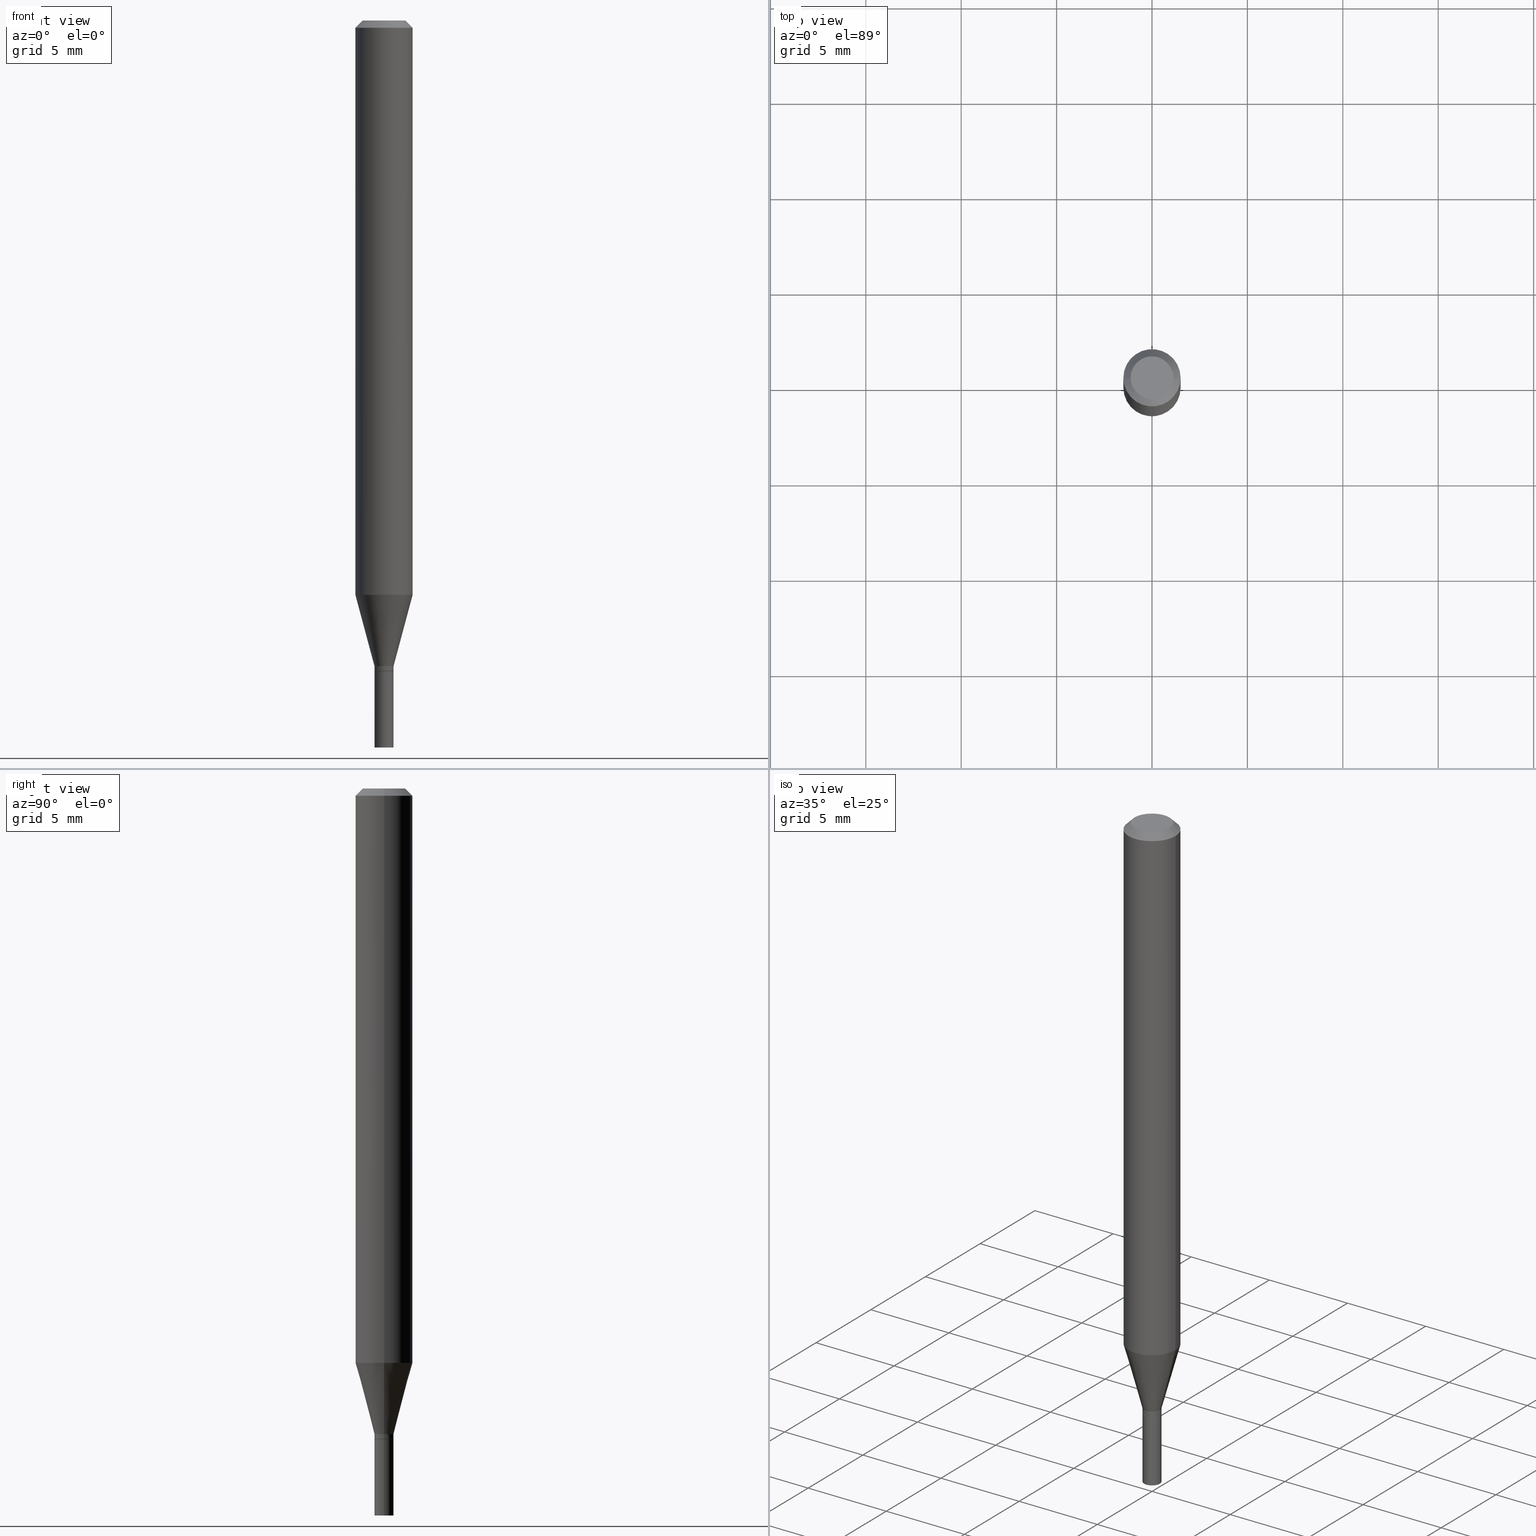
[diagram: canonical four-view strip — front | top / right | iso, engineering-drawing reading convention]
A machine part, canonical four-view strip (front | top / right | iso — engineering-drawing reading convention). The complete STEP part file that produces these views, byte-faithful:
ISO-10303-21;
HEADER;
FILE_DESCRIPTION (( 'STEP AP203' ),
    '1' );
FILE_NAME ('48650.STEP',
    '2024-03-12T19:37:40',
    ( '' ),
    ( '' ),
    'SwSTEP 2.0',
    'SolidWorks 2023',
    '' );
FILE_SCHEMA (( 'CONFIG_CONTROL_DESIGN' ));
ENDSEC;

DATA;
#1 = DIRECTION ( 'NONE',  ( -2.445468806185136597E-29, 3.491481338843145583E-15, 1.000000000000000000 ) ) ;
#2 = ORIENTED_EDGE ( 'NONE', *, *, #168, .T. ) ;
#3 = CC_DESIGN_PERSON_AND_ORGANIZATION_ASSIGNMENT ( #365, #269, ( #24 ) ) ;
#4 = ORIENTED_EDGE ( 'NONE', *, *, #100, .F. ) ;
#5 = CARTESIAN_POINT ( 'NONE',  ( 2.898232195509746702E-29, -4.137907464067076414E-15, -1.185143800722164409 ) ) ;
#6 = VECTOR ( 'NONE', #305, 39.37007874015748143 ) ;
#7 = CALENDAR_DATE ( 2024, 12, 3 ) ;
#8 = LINE ( 'NONE', #148, #243 ) ;
#9 = SECURITY_CLASSIFICATION_LEVEL ( 'unclassified' ) ;
#10 = ADVANCED_FACE ( 'NONE', ( #417 ), #272, .T. ) ;
#11 = SHAPE_DEFINITION_REPRESENTATION ( #428, #51 ) ;
#12 = CYLINDRICAL_SURFACE ( 'NONE', #371, 0.01969999999999990856 ) ;
#13 = AXIS2_PLACEMENT_3D ( 'NONE', #147, #413, #154 ) ;
#14 =( LENGTH_UNIT ( ) NAMED_UNIT ( * ) SI_UNIT ( $, .METRE. ) );
#15 = FACE_OUTER_BOUND ( 'NONE', #122, .T. ) ;
#16 = PERSON_AND_ORGANIZATION ( #335, #458 ) ;
#17 = CARTESIAN_POINT ( 'NONE',  ( 3.281819137900453618E-29, -4.685567956727501750E-15, -1.342000000000000304 ) ) ;
#18 = DIRECTION ( 'NONE',  ( -2.445468806185136597E-29, 3.491481338843145583E-15, 1.000000000000000000 ) ) ;
#19 = ORIENTED_EDGE ( 'NONE', *, *, #464, .F. ) ;
#20 = VECTOR ( 'NONE', #362, 39.37007874015748143 ) ;
#21 = ADVANCED_FACE ( 'NONE', ( #276 ), #182, .T. ) ;
#22 = CARTESIAN_POINT ( 'NONE',  ( 3.668203209277704895E-29, -5.237222008264718177E-15, -1.500000000000000222 ) ) ;
#23 = ORIENTED_EDGE ( 'NONE', *, *, #45, .F. ) ;
#24 = PRODUCT ( '48650', '48650', '', ( #429 ) ) ;
#25 = ORIENTED_EDGE ( 'NONE', *, *, #282, .T. ) ;
#26 = AXIS2_PLACEMENT_3D ( 'NONE', #61, #1, #33 ) ;
#27 = CC_DESIGN_SECURITY_CLASSIFICATION ( #311, ( #48 ) ) ;
#28 = DIRECTION ( 'NONE',  ( 1.000000000000000000, -6.982962677686253300E-15, 0.000000000000000000 ) ) ;
#29 = COORDINATED_UNIVERSAL_TIME_OFFSET ( 5, 0, .BEHIND. ) ;
#30 = ORIENTED_EDGE ( 'NONE', *, *, #290, .T. ) ;
#31 = CARTESIAN_POINT ( 'NONE',  ( 0.05905000000000001914, -4.123439461173741806E-16, 2.879382386107500921E-30 ) ) ;
#32 = EDGE_CURVE ( 'NONE', #200, #359, #73, .T. ) ;
#33 = DIRECTION ( 'NONE',  ( 1.000000000000000000, -6.982962677686266711E-15, 4.876176775795935793E-29 ) ) ;
#34 = FACE_OUTER_BOUND ( 'NONE', #164, .T. ) ;
#35 = EDGE_LOOP ( 'NONE', ( #424, #353, #322, #350 ) ) ;
#36 = CARTESIAN_POINT ( 'NONE',  ( -0.01969999999999989468, -4.114504101497534251E-15, -1.331999999999999851 ) ) ;
#37 = ORIENTED_EDGE ( 'NONE', *, *, #155, .F. ) ;
#38 = FACE_OUTER_BOUND ( 'NONE', #369, .T. ) ;
#39 = APPROVAL ( #223, 'UNSPECIFIED' ) ;
#40 = CARTESIAN_POINT ( 'NONE',  ( 0.01919999999999999485, -4.821386580808499461E-15, -1.342500000000000249 ) ) ;
#41 = CIRCLE ( 'NONE', #309, 0.01919999999999999485 ) ;
#42 = VECTOR ( 'NONE', #465, 39.37007874015748143 ) ;
#43 = CIRCLE ( 'NONE', #410, 0.01969999999999999876 ) ;
#44 = COORDINATED_UNIVERSAL_TIME_OFFSET ( 5, 0, .BEHIND. ) ;
#45 = EDGE_CURVE ( 'NONE', #438, #159, #231, .T. ) ;
#46 = EDGE_CURVE ( 'NONE', #103, #229, #41, .T. ) ;
#47 = ORIENTED_EDGE ( 'NONE', *, *, #347, .F. ) ;
#48 = PRODUCT_DEFINITION_FORMATION_WITH_SPECIFIED_SOURCE ( 'ANY', '', #24, .NOT_KNOWN. ) ;
#49 = CARTESIAN_POINT ( 'NONE',  ( 3.283041872303546419E-29, -4.687313697396923253E-15, -1.342500000000000249 ) ) ;
#50 = APPROVAL ( #416, 'UNSPECIFIED' ) ;
#51 = ADVANCED_BREP_SHAPE_REPRESENTATION ( '48650', ( #104, #111, #121 ), #343 ) ;
#52 = ORIENTED_EDGE ( 'NONE', *, *, #327, .F. ) ;
#53 = CIRCLE ( 'NONE', #325, 0.05905000000000001914 ) ;
#54 = CARTESIAN_POINT ( 'NONE',  ( -0.05905000000000001914, 3.599717260347269535E-16, -0.01499999999999999944 ) ) ;
#55 = EDGE_CURVE ( 'NONE', #141, #159, #213, .T. ) ;
#56 = DIRECTION ( 'NONE',  ( -2.445468806185136597E-29, 3.491481338843145583E-15, 1.000000000000000000 ) ) ;
#57 = CARTESIAN_POINT ( 'NONE',  ( -0.01919999999999999485, -4.548240264956872853E-15, -1.342500000000000249 ) ) ;
#58 = CONICAL_SURFACE ( 'NONE', #194, 0.05905000000000001914, 0.7853981633974372878 ) ;
#59 = DIRECTION ( 'NONE',  ( 0.000000000000000000, 0.000000000000000000, 1.000000000000000000 ) ) ;
#60 = CARTESIAN_POINT ( 'NONE',  ( -0.05905000000000001914, -3.718331978600737710E-15, -1.185143800722164409 ) ) ;
#61 = CARTESIAN_POINT ( 'NONE',  ( 0.000000000000000000, 0.000000000000000000, 0.000000000000000000 ) ) ;
#62 = DIRECTION ( 'NONE',  ( 1.000000000000000000, -6.982962677686265922E-15, 4.876176775795935793E-29 ) ) ;
#63 = ORIENTED_EDGE ( 'NONE', *, *, #442, .F. ) ;
#64 = DIRECTION ( 'NONE',  ( -2.438088387897960049E-29, 3.491481338843145188E-15, 1.000000000000000000 ) ) ;
#65 = CARTESIAN_POINT ( 'NONE',  ( 3.283041872303546419E-29, -4.687313697396923253E-15, -1.342500000000000249 ) ) ;
#66 = AXIS2_PLACEMENT_3D ( 'NONE', #172, #163, #401 ) ;
#67 = CARTESIAN_POINT ( 'NONE',  ( 3.283041872303546419E-29, -4.687313697396923253E-15, -1.342500000000000249 ) ) ;
#68 = EDGE_CURVE ( 'NONE', #103, #421, #391, .T. ) ;
#69 = LINE ( 'NONE', #295, #6 ) ;
#70 = EDGE_CURVE ( 'NONE', #229, #103, #341, .T. ) ;
#71 = CARTESIAN_POINT ( 'NONE',  ( -0.01969999999999991896, -4.545591037782763230E-15, -1.342000000000000304 ) ) ;
#72 = DATE_AND_TIME ( #7, #441 ) ;
#73 = CIRCLE ( 'NONE', #395, 0.01969999999999999876 ) ;
#74 = DIRECTION ( 'NONE',  ( -2.445468806185136597E-29, 3.491481338843145583E-15, 1.000000000000000000 ) ) ;
#75 = PERSON_AND_ORGANIZATION ( #335, #458 ) ;
#76 = VECTOR ( 'NONE', #378, 39.37007874015748143 ) ;
#77 = DIRECTION ( 'NONE',  ( -1.000000000000000000, 6.982962677686265922E-15, -4.876176775795935793E-29 ) ) ;
#78 = VERTEX_POINT ( 'NONE', #60 ) ;
#79 = CLOSED_SHELL ( 'NONE', ( #336, #191, #228, #230, #368, #21, #97, #81, #238, #176, #250, #170 ) ) ;
#80 = VECTOR ( 'NONE', #92, 39.37007874015748143 ) ;
#81 = ADVANCED_FACE ( 'NONE', ( #352 ), #175, .T. ) ;
#82 = CARTESIAN_POINT ( 'NONE',  ( -8.641182519006289553E-45, 1.233731848647591164E-30, 3.533548453838711334E-16 ) ) ;
#83 = DIRECTION ( 'NONE',  ( -2.445468806185136597E-29, 3.491481338843145583E-15, 1.000000000000000000 ) ) ;
#84 = VERTEX_POINT ( 'NONE', #463 ) ;
#85 = DIRECTION ( 'NONE',  ( -2.445468806185136597E-29, 3.491481338843145583E-15, 1.000000000000000000 ) ) ;
#86 = CC_DESIGN_APPROVAL ( #39, ( #311 ) ) ;
#87 = ORIENTED_EDGE ( 'NONE', *, *, #244, .T. ) ;
#88 = ADVANCED_FACE ( 'NONE', ( #136 ), #358, .T. ) ;
#89 = CARTESIAN_POINT ( 'NONE',  ( 3.668203209277705088E-31, -5.237222008264718399E-17, -0.01499999999999999944 ) ) ;
#90 = DIRECTION ( 'NONE',  ( 1.000000000000000000, 0.000000000000000000, 0.000000000000000000 ) ) ;
#91 = ORIENTED_EDGE ( 'NONE', *, *, #258, .F. ) ;
#92 = DIRECTION ( 'NONE',  ( -0.7071067811865396902, 2.468850131082174625E-15, -0.7071067811865553443 ) ) ;
#93 = APPROVAL_ROLE ( '' ) ;
#94 = ORIENTED_EDGE ( 'NONE', *, *, #55, .F. ) ;
#95 = VECTOR ( 'NONE', #297, 39.37007874015748854 ) ;
#96 = DIRECTION ( 'NONE',  ( 1.000000000000000000, -6.982962677686266711E-15, 0.000000000000000000 ) ) ;
#97 = ADVANCED_FACE ( 'NONE', ( #393 ), #433, .T. ) ;
#98 = ORIENTED_EDGE ( 'NONE', *, *, #277, .T. ) ;
#99 = PLANE ( 'NONE',  #251 ) ;
#100 = EDGE_CURVE ( 'NONE', #359, #200, #224, .T. ) ;
#101 = ORIENTED_EDGE ( 'NONE', *, *, #373, .T. ) ;
#102 = CONICAL_SURFACE ( 'NONE', #165, 0.01969999999999989468, 0.2617993877991499074 ) ;
#103 = VERTEX_POINT ( 'NONE', #57 ) ;
#104 = MANIFOLD_SOLID_BREP ( 'Body-Move/Copy2[1]', #292 ) ;
#105 = ORIENTED_EDGE ( 'NONE', *, *, #299, .T. ) ;
#106 = PERSON_AND_ORGANIZATION ( #335, #458 ) ;
#107 = LINE ( 'NONE', #40, #450 ) ;
#108 = CARTESIAN_POINT ( 'NONE',  ( -0.01969999999999999876, -4.822290933886080617E-15, -1.500000000000000222 ) ) ;
#109 = CARTESIAN_POINT ( 'NONE',  ( 0.05905000000000001914, -4.574846268510562433E-16, -0.01499999999999999944 ) ) ;
#110 = PRODUCT_RELATED_PRODUCT_CATEGORY ( 'detail', '', ( #24 ) ) ;
#111 = MANIFOLD_SOLID_BREP ( 'Body-Move/Copy2[2]', #79 ) ;
#112 = EDGE_LOOP ( 'NONE', ( #316, #179, #196, #169 ) ) ;
#113 = APPROVAL_DATE_TIME ( #72, #39 ) ;
#114 = APPROVAL_STATUS ( 'not_yet_approved' ) ;
#115 = DATE_TIME_ROLE ( 'creation_date' ) ;
#116 = DIRECTION ( 'NONE',  ( 1.000000000000000000, -6.982962677686266711E-15, 4.876176775795935793E-29 ) ) ;
#117 = ORIENTED_EDGE ( 'NONE', *, *, #210, .T. ) ;
#118 = AXIS2_PLACEMENT_3D ( 'NONE', #385, #420, #124 ) ;
#119 = CIRCLE ( 'NONE', #288, 0.01969999999999991896 ) ;
#120 = CARTESIAN_POINT ( 'NONE',  ( 2.898232195509746702E-29, -4.137907464067076414E-15, -1.185143800722164409 ) ) ;
#121 = AXIS2_PLACEMENT_3D ( 'NONE', #399, #59, #90 ) ;
#122 = EDGE_LOOP ( 'NONE', ( #405, #30, #101, #313 ) ) ;
#123 = DIRECTION ( 'NONE',  ( -2.445468806185136597E-29, 3.491481338843145583E-15, 1.000000000000000000 ) ) ;
#124 = DIRECTION ( 'NONE',  ( 1.000000000000000000, -6.982962677686265922E-15, 4.876176775795935232E-29 ) ) ;
#125 = CARTESIAN_POINT ( 'NONE',  ( 0.000000000000000000, 0.000000000000000000, 0.000000000000000000 ) ) ;
#126 = EDGE_CURVE ( 'NONE', #421, #208, #422, .T. ) ;
#127 = EDGE_LOOP ( 'NONE', ( #180, #4 ) ) ;
#128 = ORIENTED_EDGE ( 'NONE', *, *, #68, .F. ) ;
#129 = CIRCLE ( 'NONE', #445, 0.04404999999999999888 ) ;
#130 = APPROVAL_DATE_TIME ( #314, #160 ) ;
#131 = ORIENTED_EDGE ( 'NONE', *, *, #442, .T. ) ;
#132 = DIRECTION ( 'NONE',  ( -2.445468806185136877E-29, 3.491481338843145188E-15, 1.000000000000000000 ) ) ;
#133 = DIRECTION ( 'NONE',  ( 1.000000000000000000, -6.982962677686266711E-15, 0.000000000000000000 ) ) ;
#134 = EDGE_LOOP ( 'NONE', ( #105, #415, #52, #466 ) ) ;
#135 = EDGE_CURVE ( 'NONE', #460, #141, #389, .T. ) ;
#136 = FACE_OUTER_BOUND ( 'NONE', #283, .T. ) ;
#137 = DIRECTION ( 'NONE',  ( 2.438088387897960049E-29, -3.491481338843145188E-15, -1.000000000000000000 ) ) ;
#138 = CYLINDRICAL_SURFACE ( 'NONE', #26, 0.01969999999999990856 ) ;
#139 = CARTESIAN_POINT ( 'NONE',  ( 3.668203209277705088E-31, -5.237222008264718399E-17, -0.01499999999999999944 ) ) ;
#140 = AXIS2_PLACEMENT_3D ( 'NONE', #199, #275, #286 ) ;
#141 = VERTEX_POINT ( 'NONE', #240 ) ;
#142 = PLANE ( 'NONE',  #351 ) ;
#143 = AXIS2_PLACEMENT_3D ( 'NONE', #273, #74, #261 ) ;
#144 = APPLICATION_CONTEXT ( 'configuration controlled 3d designs of mechanical parts and assemblies' ) ;
#145 = ORIENTED_EDGE ( 'NONE', *, *, #46, .T. ) ;
#146 = CALENDAR_DATE ( 2024, 12, 3 ) ;
#147 = CARTESIAN_POINT ( 'NONE',  ( 3.257364449838602072E-29, -4.650653143339069312E-15, -1.331999999999999851 ) ) ;
#148 = CARTESIAN_POINT ( 'NONE',  ( -0.05905000000000001914, 4.195754854663392958E-16, -2.904631170795522943E-30 ) ) ;
#149 = CARTESIAN_POINT ( 'NONE',  ( 3.281819137900453618E-29, -4.685567956727501750E-15, -1.342000000000000304 ) ) ;
#150 = PERSON_AND_ORGANIZATION_ROLE ( 'creator' ) ;
#151 = CONICAL_SURFACE ( 'NONE', #435, 0.01919999999999999485, 0.7853981633974739252 ) ;
#152 = APPLICATION_CONTEXT ( 'configuration controlled 3d designs of mechanical parts and assemblies' ) ;
#153 = CARTESIAN_POINT ( 'NONE',  ( 0.000000000000000000, 0.000000000000000000, 0.000000000000000000 ) ) ;
#154 = DIRECTION ( 'NONE',  ( 1.000000000000000000, -6.982962677686266711E-15, 0.000000000000000000 ) ) ;
#155 = EDGE_CURVE ( 'NONE', #208, #348, #360, .T. ) ;
#156 = CYLINDRICAL_SURFACE ( 'NONE', #457, 0.05905000000000001914 ) ;
#157 = ORIENTED_EDGE ( 'NONE', *, *, #46, .F. ) ;
#158 = AXIS2_PLACEMENT_3D ( 'NONE', #89, #201, #234 ) ;
#159 = VERTEX_POINT ( 'NONE', #454 ) ;
#160 = APPROVAL ( #114, 'UNSPECIFIED' ) ;
#161 = CARTESIAN_POINT ( 'NONE',  ( -0.01919999999999999485, -4.550889492130984054E-15, -1.342500000000000249 ) ) ;
#162 = ORIENTED_EDGE ( 'NONE', *, *, #100, .T. ) ;
#163 = DIRECTION ( 'NONE',  ( -2.445468806185136597E-29, 3.491481338843145583E-15, 1.000000000000000000 ) ) ;
#164 = EDGE_LOOP ( 'NONE', ( #306, #204 ) ) ;
#165 = AXIS2_PLACEMENT_3D ( 'NONE', #355, #174, #96 ) ;
#166 = APPROVAL_PERSON_ORGANIZATION ( #106, #39, #187 ) ;
#167 = CARTESIAN_POINT ( 'NONE',  ( 3.257364449838602072E-29, -4.650653143339069312E-15, -1.331999999999999851 ) ) ;
#168 = EDGE_CURVE ( 'NONE', #241, #460, #129, .T. ) ;
#169 = ORIENTED_EDGE ( 'NONE', *, *, #430, .F. ) ;
#170 = ADVANCED_FACE ( 'NONE', ( #38 ), #138, .T. ) ;
#171 = CC_DESIGN_DATE_AND_TIME_ASSIGNMENT ( #408, #115, ( #248 ) ) ;
#172 = CARTESIAN_POINT ( 'NONE',  ( 3.668203209277705088E-31, -5.237222008264718399E-17, -0.01499999999999999944 ) ) ;
#173 = FACE_OUTER_BOUND ( 'NONE', #308, .T. ) ;
#174 = DIRECTION ( 'NONE',  ( -2.445468806185136597E-29, 3.491481338843145583E-15, 1.000000000000000000 ) ) ;
#175 = CONICAL_SURFACE ( 'NONE', #158, 0.05905000000000001914, 0.7853981633974372878 ) ;
#176 = ADVANCED_FACE ( 'NONE', ( #173 ), #142, .F. ) ;
#177 = LINE ( 'NONE', #329, #300 ) ;
#178 = CARTESIAN_POINT ( 'NONE',  ( 0.05905000000000001914, -4.550251410184451334E-15, -1.185143800722164409 ) ) ;
#179 = ORIENTED_EDGE ( 'NONE', *, *, #68, .T. ) ;
#180 = ORIENTED_EDGE ( 'NONE', *, *, #32, .F. ) ;
#181 = DIRECTION ( 'NONE',  ( -2.445468806185136597E-29, 3.491481338843145583E-15, 1.000000000000000000 ) ) ;
#182 = CONICAL_SURFACE ( 'NONE', #449, 0.01969999999999989468, 0.2617993877991499074 ) ;
#183 = AXIS2_PLACEMENT_3D ( 'NONE', #384, #64, #443 ) ;
#184 = APPROVAL_PERSON_ORGANIZATION ( #75, #50, #190 ) ;
#185 = FACE_OUTER_BOUND ( 'NONE', #112, .T. ) ;
#186 = CARTESIAN_POINT ( 'NONE',  ( 3.668203209277705088E-31, -5.237222008264718399E-17, -0.01499999999999999944 ) ) ;
#187 = APPROVAL_ROLE ( '' ) ;
#188 = CARTESIAN_POINT ( 'NONE',  ( 0.01969999999999989468, -4.788217508089488526E-15, -1.331999999999999851 ) ) ;
#189 = CARTESIAN_POINT ( 'NONE',  ( 3.075995059520799729E-16, 0.04404999999999999888, 2.287766971589501637E-17 ) ) ;
#190 = APPROVAL_ROLE ( '' ) ;
#191 = ADVANCED_FACE ( 'NONE', ( #185 ), #233, .T. ) ;
#192 = FACE_OUTER_BOUND ( 'NONE', #134, .T. ) ;
#193 = DIRECTION ( 'NONE',  ( 1.000000000000000000, -6.982962677686278543E-15, 0.000000000000000000 ) ) ;
#194 = AXIS2_PLACEMENT_3D ( 'NONE', #186, #266, #382 ) ;
#195 = DATE_AND_TIME ( #339, #226 ) ;
#196 = ORIENTED_EDGE ( 'NONE', *, *, #299, .F. ) ;
#197 = PLANE ( 'NONE',  #183 ) ;
#198 = DIRECTION ( 'NONE',  ( 1.000000000000000000, -6.982962677686278543E-15, 0.000000000000000000 ) ) ;
#199 = CARTESIAN_POINT ( 'NONE',  ( 0.000000000000000000, 0.000000000000000000, 0.000000000000000000 ) ) ;
#200 = VERTEX_POINT ( 'NONE', #296 ) ;
#201 = DIRECTION ( 'NONE',  ( 2.445468806185136597E-29, -3.491481338843145583E-15, -1.000000000000000000 ) ) ;
#202 = PERSON_AND_ORGANIZATION_ROLE ( 'creator' ) ;
#203 = VECTOR ( 'NONE', #455, 39.37007874015748143 ) ;
#204 = ORIENTED_EDGE ( 'NONE', *, *, #464, .T. ) ;
#205 = DIRECTION ( 'NONE',  ( -2.445468806185136597E-29, 3.491481338843145583E-15, 1.000000000000000000 ) ) ;
#206 = CARTESIAN_POINT ( 'NONE',  ( 3.668203209277704895E-29, -5.237222008264718177E-15, -1.500000000000000222 ) ) ;
#207 = ORIENTED_EDGE ( 'NONE', *, *, #70, .F. ) ;
#208 = VERTEX_POINT ( 'NONE', #36 ) ;
#209 = AXIS2_PLACEMENT_3D ( 'NONE', #17, #220, #262 ) ;
#210 = EDGE_CURVE ( 'NONE', #208, #78, #177, .T. ) ;
#211 = CARTESIAN_POINT ( 'NONE',  ( 0.01969999999999999876, -4.824878062147343257E-15, -1.342500000000000249 ) ) ;
#212 = ORIENTED_EDGE ( 'NONE', *, *, #45, .T. ) ;
#213 = CIRCLE ( 'NONE', #66, 0.05905000000000001914 ) ;
#214 = CARTESIAN_POINT ( 'NONE',  ( 3.283041872303546419E-29, -4.687313697396923253E-15, -1.342500000000000249 ) ) ;
#215 = DATE_AND_TIME ( #303, #245 ) ;
#216 = ORIENTED_EDGE ( 'NONE', *, *, #126, .F. ) ;
#217 = DIRECTION ( 'NONE',  ( -2.445468806185136597E-29, 3.491481338843145583E-15, 1.000000000000000000 ) ) ;
#218 = APPROVAL_DATE_TIME ( #195, #50 ) ;
#219 = UNCERTAINTY_MEASURE_WITH_UNIT (LENGTH_MEASURE( 1.000000000000000082E-05 ), #376, 'distance_accuracy_value', 'NONE');
#220 = DIRECTION ( 'NONE',  ( -2.445468806185136597E-29, 3.491481338843145583E-15, 1.000000000000000000 ) ) ;
#221 = LINE ( 'NONE', #411, #95 ) ;
#222 = DIRECTION ( 'NONE',  ( -0.2588190451025211836, 5.211531920934547886E-15, 0.9659258262890679791 ) ) ;
#223 = APPROVAL_STATUS ( 'not_yet_approved' ) ;
#224 = CIRCLE ( 'NONE', #270, 0.01969999999999999876 ) ;
#225 = COORDINATED_UNIVERSAL_TIME_OFFSET ( 5, 0, .BEHIND. ) ;
#226 = LOCAL_TIME ( 15, 37, 40.00000000000000000, #225 ) ;
#227 = DIRECTION ( 'NONE',  ( 1.000000000000000000, -6.982962677686265922E-15, 4.819687581474398999E-29 ) ) ;
#228 = ADVANCED_FACE ( 'NONE', ( #15 ), #58, .T. ) ;
#229 = VERTEX_POINT ( 'NONE', #307 ) ;
#230 = ADVANCED_FACE ( 'NONE', ( #451 ), #156, .T. ) ;
#231 = LINE ( 'NONE', #31, #242 ) ;
#232 = EDGE_LOOP ( 'NONE', ( #436, #117, #263, #47 ) ) ;
#233 = CONICAL_SURFACE ( 'NONE', #404, 0.01919999999999999485, 0.7853981633974739252 ) ;
#234 = DIRECTION ( 'NONE',  ( -1.000000000000000000, 6.982962677686266711E-15, 0.000000000000000000 ) ) ;
#235 = EDGE_LOOP ( 'NONE', ( #330, #274, #212, #94 ) ) ;
#236 = EDGE_CURVE ( 'NONE', #400, #402, #293, .T. ) ;
#237 = CARTESIAN_POINT ( 'NONE',  ( -8.641182519006289553E-45, 1.233731848647591164E-30, 3.533548453838711334E-16 ) ) ;
#238 = ADVANCED_FACE ( 'NONE', ( #271 ), #419, .F. ) ;
#239 = EDGE_LOOP ( 'NONE', ( #98, #346, #426, #23 ) ) ;
#240 = CARTESIAN_POINT ( 'NONE',  ( -0.05905000000000001914, -1.675564356608522648E-15, -0.01499999999999999944 ) ) ;
#241 = VERTEX_POINT ( 'NONE', #387 ) ;
#242 = VECTOR ( 'NONE', #132, 39.37007874015748143 ) ;
#243 = VECTOR ( 'NONE', #301, 39.37007874015748143 ) ;
#244 = EDGE_CURVE ( 'NONE', #460, #241, #456, .T. ) ;
#245 = LOCAL_TIME ( 15, 37, 40.00000000000000000, #267 ) ;
#246 = DIRECTION ( 'NONE',  ( 1.000000000000000000, -6.982962677686266711E-15, 0.000000000000000000 ) ) ;
#247 = ORIENTED_EDGE ( 'NONE', *, *, #282, .F. ) ;
#248 = PRODUCT_DEFINITION ( 'UNKNOWN', '', #48, #324 ) ;
#249 = CARTESIAN_POINT ( 'NONE',  ( 1.375643647504522233E-16, 0.01969999999999531154, -1.342500000000000249 ) ) ;
#250 = ADVANCED_FACE ( 'NONE', ( #379 ), #151, .T. ) ;
#251 = AXIS2_PLACEMENT_3D ( 'NONE', #249, #137, #287 ) ;
#252 = LOCAL_TIME ( 15, 37, 40.00000000000000000, #268 ) ;
#253 = ORIENTED_EDGE ( 'NONE', *, *, #430, .T. ) ;
#254 = DIRECTION ( 'NONE',  ( -2.445468806185136597E-29, 3.491481338843145583E-15, 1.000000000000000000 ) ) ;
#255 = DIRECTION ( 'NONE',  ( -2.438088387897960049E-29, 3.491481338843145188E-15, 1.000000000000000000 ) ) ;
#256 = CC_DESIGN_PERSON_AND_ORGANIZATION_ASSIGNMENT ( #16, #448, ( #311 ) ) ;
#257 = ORIENTED_EDGE ( 'NONE', *, *, #347, .T. ) ;
#258 = EDGE_CURVE ( 'NONE', #421, #84, #119, .T. ) ;
#259 = AXIS2_PLACEMENT_3D ( 'NONE', #423, #123, #28 ) ;
#260 = DIRECTION ( 'NONE',  ( -2.445468806185136597E-29, 3.491481338843145583E-15, 1.000000000000000000 ) ) ;
#261 = DIRECTION ( 'NONE',  ( 1.000000000000000000, -6.982962677686278543E-15, 0.000000000000000000 ) ) ;
#262 = DIRECTION ( 'NONE',  ( 1.000000000000000000, -6.982962677686258033E-15, 0.000000000000000000 ) ) ;
#263 = ORIENTED_EDGE ( 'NONE', *, *, #277, .F. ) ;
#264 = DIRECTION ( 'NONE',  ( 1.000000000000000000, -6.982962677686258033E-15, 0.000000000000000000 ) ) ;
#265 = PERSON_AND_ORGANIZATION_ROLE ( 'design_supplier' ) ;
#266 = DIRECTION ( 'NONE',  ( 2.445468806185136597E-29, -3.491481338843145583E-15, -1.000000000000000000 ) ) ;
#267 = COORDINATED_UNIVERSAL_TIME_OFFSET ( 5, 0, .BEHIND. ) ;
#268 = COORDINATED_UNIVERSAL_TIME_OFFSET ( 5, 0, .BEHIND. ) ;
#269 = PERSON_AND_ORGANIZATION_ROLE ( 'design_owner' ) ;
#270 = AXIS2_PLACEMENT_3D ( 'NONE', #22, #312, #431 ) ;
#271 = FACE_OUTER_BOUND ( 'NONE', #328, .T. ) ;
#272 = CYLINDRICAL_SURFACE ( 'NONE', #118, 0.01969999999999999876 ) ;
#273 = CARTESIAN_POINT ( 'NONE',  ( 3.283041872303546419E-29, -4.687313697396923253E-15, -1.342500000000000249 ) ) ;
#274 = ORIENTED_EDGE ( 'NONE', *, *, #289, .T. ) ;
#275 = DIRECTION ( 'NONE',  ( -2.445468806185136597E-29, 3.491481338843145583E-15, 1.000000000000000000 ) ) ;
#276 = FACE_OUTER_BOUND ( 'NONE', #434, .T. ) ;
#277 = EDGE_CURVE ( 'NONE', #438, #78, #380, .T. ) ;
#278 = AXIS2_PLACEMENT_3D ( 'NONE', #189, #412, #77 ) ;
#279 = ORIENTED_EDGE ( 'NONE', *, *, #32, .T. ) ;
#280 = PERSON_AND_ORGANIZATION ( #335, #458 ) ;
#281 = CARTESIAN_POINT ( 'NONE',  ( -0.01969999999999990856, 1.399769189447390869E-16, -9.690302127802118711E-31 ) ) ;
#282 = EDGE_CURVE ( 'NONE', #359, #402, #69, .T. ) ;
#283 = EDGE_LOOP ( 'NONE', ( #279, #25, #363, #63 ) ) ;
#284 = CARTESIAN_POINT ( 'NONE',  ( 3.283041872303546419E-29, -4.687313697396923253E-15, -1.342500000000000249 ) ) ;
#285 = ORIENTED_EDGE ( 'NONE', *, *, #289, .F. ) ;
#286 = DIRECTION ( 'NONE',  ( 1.000000000000000000, -6.982962677686265922E-15, 4.876176775795935232E-29 ) ) ;
#287 = DIRECTION ( 'NONE',  ( -1.000000000000000000, 6.982962677686265922E-15, -4.876176775795935793E-29 ) ) ;
#288 = AXIS2_PLACEMENT_3D ( 'NONE', #149, #302, #264 ) ;
#289 = EDGE_CURVE ( 'NONE', #78, #438, #53, .T. ) ;
#290 = EDGE_CURVE ( 'NONE', #241, #159, #414, .T. ) ;
#291 = ORIENTED_EDGE ( 'NONE', *, *, #258, .T. ) ;
#292 = CLOSED_SHELL ( 'NONE', ( #88, #398, #10, #452 ) ) ;
#293 = CIRCLE ( 'NONE', #143, 0.01969999999999999876 ) ;
#294 = CC_DESIGN_PERSON_AND_ORGANIZATION_ASSIGNMENT ( #345, #150, ( #48 ) ) ;
#295 = CARTESIAN_POINT ( 'NONE',  ( -0.01969999999999999876, 1.399769189447397278E-16, -9.690302127802162501E-31 ) ) ;
#296 = CARTESIAN_POINT ( 'NONE',  ( 0.01969999999999999876, -5.374786373015138180E-15, -1.500000000000000222 ) ) ;
#297 = DIRECTION ( 'NONE',  ( 0.2588190451025211836, 1.565188264969622559E-15, 0.9659258262890679791 ) ) ;
#298 = LINE ( 'NONE', #444, #76 ) ;
#299 = EDGE_CURVE ( 'NONE', #84, #421, #390, .T. ) ;
#300 = VECTOR ( 'NONE', #222, 39.37007874015748854 ) ;
#301 = DIRECTION ( 'NONE',  ( -2.445468806185136877E-29, 3.491481338843145188E-15, 1.000000000000000000 ) ) ;
#302 = DIRECTION ( 'NONE',  ( -2.445468806185136597E-29, 3.491481338843145583E-15, 1.000000000000000000 ) ) ;
#303 = CALENDAR_DATE ( 2024, 12, 3 ) ;
#304 = ORIENTED_EDGE ( 'NONE', *, *, #210, .F. ) ;
#305 = DIRECTION ( 'NONE',  ( -2.445468806185136877E-29, 3.491481338843145188E-15, 1.000000000000000000 ) ) ;
#306 = ORIENTED_EDGE ( 'NONE', *, *, #236, .T. ) ;
#307 = CARTESIAN_POINT ( 'NONE',  ( 0.01919999999999999485, -4.821386580808499461E-15, -1.342500000000000249 ) ) ;
#308 = EDGE_LOOP ( 'NONE', ( #207, #157 ) ) ;
#309 = AXIS2_PLACEMENT_3D ( 'NONE', #284, #85, #427 ) ;
#310 = CIRCLE ( 'NONE', #13, 0.01969999999999989468 ) ;
#311 = SECURITY_CLASSIFICATION ( '', '', #9 ) ;
#312 = DIRECTION ( 'NONE',  ( -2.445468806185136597E-29, 3.491481338843145583E-15, 1.000000000000000000 ) ) ;
#313 = ORIENTED_EDGE ( 'NONE', *, *, #135, .F. ) ;
#314 = DATE_AND_TIME ( #386, #252 ) ;
#315 = DIRECTION ( 'NONE',  ( 1.000000000000000000, -6.982962677686266711E-15, 4.876176775795935793E-29 ) ) ;
#316 = ORIENTED_EDGE ( 'NONE', *, *, #70, .T. ) ;
#317 = CIRCLE ( 'NONE', #440, 0.05905000000000001914 ) ;
#318 = DIMENSIONAL_EXPONENTS ( 1.000000000000000000, 0.000000000000000000, 0.000000000000000000, 0.000000000000000000, 0.000000000000000000, 0.000000000000000000, 0.000000000000000000 ) ;
#319 = DIRECTION ( 'NONE',  ( 1.000000000000000000, -6.982962677686266711E-15, 0.000000000000000000 ) ) ;
#320 =( NAMED_UNIT ( * ) PLANE_ANGLE_UNIT ( ) SI_UNIT ( $, .RADIAN. ) );
#321 = APPLICATION_PROTOCOL_DEFINITION ( 'international standard', 'config_control_design', 1994, #144 ) ;
#322 = ORIENTED_EDGE ( 'NONE', *, *, #135, .T. ) ;
#323 = CC_DESIGN_DATE_AND_TIME_ASSIGNMENT ( #215, #446, ( #311 ) ) ;
#324 = DESIGN_CONTEXT ( 'detailed design', #152, 'design' ) ;
#325 = AXIS2_PLACEMENT_3D ( 'NONE', #120, #83, #388 ) ;
#326 = CARTESIAN_POINT ( 'NONE',  ( -0.01969999999999999876, -4.822290933886080617E-15, -1.342500000000000249 ) ) ;
#327 = EDGE_CURVE ( 'NONE', #348, #208, #310, .T. ) ;
#328 = EDGE_LOOP ( 'NONE', ( #87, #2 ) ) ;
#329 = CARTESIAN_POINT ( 'NONE',  ( -0.01969999999999989468, -4.510676224394330003E-15, -1.331999999999999851 ) ) ;
#330 = ORIENTED_EDGE ( 'NONE', *, *, #437, .F. ) ;
#331 = DIRECTION ( 'NONE',  ( 0.7071067811865656694, -2.468850131082446387E-15, 0.7071067811865294761 ) ) ;
#332 = EDGE_CURVE ( 'NONE', #84, #348, #298, .T. ) ;
#333 = ORIENTED_EDGE ( 'NONE', *, *, #332, .T. ) ;
#334 = DIRECTION ( 'NONE',  ( 1.000000000000000000, -6.982962677686253300E-15, 0.000000000000000000 ) ) ;
#335 = PERSON ( 'UNSPECIFIED', 'UNSPECIFIED', 'UNSPECIFIED', ('UNSPECIFIED'), ('UNSPECIFIED'), ('UNSPECIFIED') ) ;
#336 = ADVANCED_FACE ( 'NONE', ( #192 ), #12, .T. ) ;
#337 = FACE_OUTER_BOUND ( 'NONE', #232, .T. ) ;
#338 = DIRECTION ( 'NONE',  ( 1.000000000000000000, -6.982962677686253300E-15, 0.000000000000000000 ) ) ;
#339 = CALENDAR_DATE ( 2024, 12, 3 ) ;
#340 = PERSON_AND_ORGANIZATION ( #335, #458 ) ;
#341 = CIRCLE ( 'NONE', #259, 0.01919999999999999485 ) ;
#342 = EDGE_LOOP ( 'NONE', ( #128, #145, #253, #91 ) ) ;
#343 =( GEOMETRIC_REPRESENTATION_CONTEXT ( 3 ) GLOBAL_UNCERTAINTY_ASSIGNED_CONTEXT ( ( #219 ) ) GLOBAL_UNIT_ASSIGNED_CONTEXT ( ( #376, #320, #394 ) ) REPRESENTATION_CONTEXT ( 'NONE', 'WORKASPACE' ) );
#344 = DIRECTION ( 'NONE',  ( 1.000000000000000000, -6.982962677686266711E-15, 4.876176775795935793E-29 ) ) ;
#345 = PERSON_AND_ORGANIZATION ( #335, #458 ) ;
#346 = ORIENTED_EDGE ( 'NONE', *, *, #437, .T. ) ;
#347 = EDGE_CURVE ( 'NONE', #348, #438, #221, .T. ) ;
#348 = VERTEX_POINT ( 'NONE', #188 ) ;
#349 = CC_DESIGN_PERSON_AND_ORGANIZATION_ASSIGNMENT ( #383, #265, ( #48 ) ) ;
#350 = ORIENTED_EDGE ( 'NONE', *, *, #55, .T. ) ;
#351 = AXIS2_PLACEMENT_3D ( 'NONE', #67, #255, #62 ) ;
#352 = FACE_OUTER_BOUND ( 'NONE', #35, .T. ) ;
#353 = ORIENTED_EDGE ( 'NONE', *, *, #244, .F. ) ;
#354 = DIRECTION ( 'NONE',  ( -2.445468806185136597E-29, 3.491481338843145583E-15, 1.000000000000000000 ) ) ;
#355 = CARTESIAN_POINT ( 'NONE',  ( 3.257364449838602072E-29, -4.650653143339069312E-15, -1.331999999999999851 ) ) ;
#356 = LINE ( 'NONE', #461, #42 ) ;
#357 = CC_DESIGN_PERSON_AND_ORGANIZATION_ASSIGNMENT ( #280, #202, ( #248 ) ) ;
#358 = CYLINDRICAL_SURFACE ( 'NONE', #140, 0.01969999999999999876 ) ;
#359 = VERTEX_POINT ( 'NONE', #108 ) ;
#360 = CIRCLE ( 'NONE', #366, 0.01969999999999989468 ) ;
#361 = APPROVAL_PERSON_ORGANIZATION ( #340, #160, #93 ) ;
#362 = DIRECTION ( 'NONE',  ( -0.7071067811865656694, 7.493145998870420424E-15, 0.7071067811865294761 ) ) ;
#363 = ORIENTED_EDGE ( 'NONE', *, *, #236, .F. ) ;
#364 = CARTESIAN_POINT ( 'NONE',  ( 3.257364449838602072E-29, -4.650653143339069312E-15, -1.331999999999999851 ) ) ;
#365 = PERSON_AND_ORGANIZATION ( #335, #458 ) ;
#366 = AXIS2_PLACEMENT_3D ( 'NONE', #167, #56, #319 ) ;
#367 = CC_DESIGN_APPROVAL ( #50, ( #48 ) ) ;
#368 = ADVANCED_FACE ( 'NONE', ( #337 ), #102, .T. ) ;
#369 = EDGE_LOOP ( 'NONE', ( #216, #291, #333, #37 ) ) ;
#370 = DIRECTION ( 'NONE',  ( 1.000000000000000000, -6.982962677686265922E-15, 4.819687581474398999E-29 ) ) ;
#371 = AXIS2_PLACEMENT_3D ( 'NONE', #153, #260, #344 ) ;
#372 = LENGTH_MEASURE_WITH_UNIT ( LENGTH_MEASURE( 0.02539999999999999897 ), #14 );
#373 = EDGE_CURVE ( 'NONE', #159, #141, #317, .T. ) ;
#374 = DIRECTION ( 'NONE',  ( 0.7071067811865396902, -7.319954787623229224E-15, -0.7071067811865553443 ) ) ;
#375 = APPLICATION_PROTOCOL_DEFINITION ( 'international standard', 'config_control_design', 1994, #152 ) ;
#376 =( CONVERSION_BASED_UNIT ( 'INCH', #372 ) LENGTH_UNIT ( ) NAMED_UNIT ( #318 ) );
#377 = DIRECTION ( 'NONE',  ( -2.445468806185136597E-29, 3.491481338843145583E-15, 1.000000000000000000 ) ) ;
#378 = DIRECTION ( 'NONE',  ( -2.445468806185136877E-29, 3.491481338843145188E-15, 1.000000000000000000 ) ) ;
#379 = FACE_OUTER_BOUND ( 'NONE', #342, .T. ) ;
#380 = CIRCLE ( 'NONE', #425, 0.05905000000000001914 ) ;
#381 = CC_DESIGN_APPROVAL ( #160, ( #248 ) ) ;
#382 = DIRECTION ( 'NONE',  ( -1.000000000000000000, 6.982962677686266711E-15, 0.000000000000000000 ) ) ;
#383 = PERSON_AND_ORGANIZATION ( #335, #458 ) ;
#384 = CARTESIAN_POINT ( 'NONE',  ( 3.576687321579069994E-29, -5.368277968210015545E-15, -1.500000000000000222 ) ) ;
#385 = CARTESIAN_POINT ( 'NONE',  ( 0.000000000000000000, 0.000000000000000000, 0.000000000000000000 ) ) ;
#386 = CALENDAR_DATE ( 2024, 12, 3 ) ;
#387 = CARTESIAN_POINT ( 'NONE',  ( 0.04404999999999999888, -3.798447818264455642E-16, 3.533548453838735986E-16 ) ) ;
#388 = DIRECTION ( 'NONE',  ( 1.000000000000000000, -6.982962677686270655E-15, 0.000000000000000000 ) ) ;
#389 = LINE ( 'NONE', #54, #80 ) ;
#390 = CIRCLE ( 'NONE', #209, 0.01969999999999991896 ) ;
#391 = LINE ( 'NONE', #161, #20 ) ;
#392 = DIRECTION ( 'NONE',  ( -2.445468806185136597E-29, 3.491481338843145583E-15, 1.000000000000000000 ) ) ;
#393 = FACE_OUTER_BOUND ( 'NONE', #235, .T. ) ;
#394 =( NAMED_UNIT ( * ) SI_UNIT ( $, .STERADIAN. ) SOLID_ANGLE_UNIT ( ) );
#395 = AXIS2_PLACEMENT_3D ( 'NONE', #206, #453, #198 ) ;
#396 = VECTOR ( 'NONE', #374, 39.37007874015748143 ) ;
#397 = LOCAL_TIME ( 15, 37, 40.00000000000000000, #29 ) ;
#398 = ADVANCED_FACE ( 'NONE', ( #439 ), #197, .F. ) ;
#399 = CARTESIAN_POINT ( 'NONE',  ( 0.000000000000000000, 0.000000000000000000, 0.000000000000000000 ) ) ;
#400 = VERTEX_POINT ( 'NONE', #211 ) ;
#401 = DIRECTION ( 'NONE',  ( 1.000000000000000000, -6.982962677686266711E-15, 0.000000000000000000 ) ) ;
#402 = VERTEX_POINT ( 'NONE', #326 ) ;
#403 = CARTESIAN_POINT ( 'NONE',  ( -0.04404999999999999888, 3.337856159934041534E-16, 3.533548453838689148E-16 ) ) ;
#404 = AXIS2_PLACEMENT_3D ( 'NONE', #214, #181, #334 ) ;
#405 = ORIENTED_EDGE ( 'NONE', *, *, #168, .F. ) ;
#406 = DIRECTION ( 'NONE',  ( 1.000000000000000000, -6.982962677686270655E-15, 0.000000000000000000 ) ) ;
#407 = ORIENTED_EDGE ( 'NONE', *, *, #155, .T. ) ;
#408 = DATE_AND_TIME ( #146, #397 ) ;
#409 = AXIS2_PLACEMENT_3D ( 'NONE', #125, #354, #315 ) ;
#410 = AXIS2_PLACEMENT_3D ( 'NONE', #65, #462, #193 ) ;
#411 = CARTESIAN_POINT ( 'NONE',  ( 0.01969999999999989468, -4.788217508089488526E-15, -1.331999999999999851 ) ) ;
#412 = DIRECTION ( 'NONE',  ( 2.438088387897960049E-29, -3.491481338843145188E-15, -1.000000000000000000 ) ) ;
#413 = DIRECTION ( 'NONE',  ( -2.445468806185136597E-29, 3.491481338843145583E-15, 1.000000000000000000 ) ) ;
#414 = LINE ( 'NONE', #109, #396 ) ;
#415 = ORIENTED_EDGE ( 'NONE', *, *, #126, .T. ) ;
#416 = APPROVAL_STATUS ( 'not_yet_approved' ) ;
#417 = FACE_OUTER_BOUND ( 'NONE', #432, .T. ) ;
#418 = AXIS2_PLACEMENT_3D ( 'NONE', #82, #217, #227 ) ;
#419 = PLANE ( 'NONE',  #278 ) ;
#420 = DIRECTION ( 'NONE',  ( -2.445468806185136597E-29, 3.491481338843145583E-15, 1.000000000000000000 ) ) ;
#421 = VERTEX_POINT ( 'NONE', #71 ) ;
#422 = LINE ( 'NONE', #281, #203 ) ;
#423 = CARTESIAN_POINT ( 'NONE',  ( 3.283041872303546419E-29, -4.687313697396923253E-15, -1.342500000000000249 ) ) ;
#424 = ORIENTED_EDGE ( 'NONE', *, *, #290, .F. ) ;
#425 = AXIS2_PLACEMENT_3D ( 'NONE', #5, #254, #406 ) ;
#426 = ORIENTED_EDGE ( 'NONE', *, *, #373, .F. ) ;
#427 = DIRECTION ( 'NONE',  ( 1.000000000000000000, -6.982962677686253300E-15, 0.000000000000000000 ) ) ;
#428 = PRODUCT_DEFINITION_SHAPE ( 'NONE', 'NONE',  #248 ) ;
#429 = MECHANICAL_CONTEXT ( 'NONE', #144, 'mechanical' ) ;
#430 = EDGE_CURVE ( 'NONE', #229, #84, #107, .T. ) ;
#431 = DIRECTION ( 'NONE',  ( 1.000000000000000000, -6.982962677686278543E-15, 0.000000000000000000 ) ) ;
#432 = EDGE_LOOP ( 'NONE', ( #247, #162, #131, #19 ) ) ;
#433 = CYLINDRICAL_SURFACE ( 'NONE', #409, 0.05905000000000001914 ) ;
#434 = EDGE_LOOP ( 'NONE', ( #304, #407, #257, #285 ) ) ;
#435 = AXIS2_PLACEMENT_3D ( 'NONE', #49, #377, #338 ) ;
#436 = ORIENTED_EDGE ( 'NONE', *, *, #327, .T. ) ;
#437 = EDGE_CURVE ( 'NONE', #78, #141, #8, .T. ) ;
#438 = VERTEX_POINT ( 'NONE', #178 ) ;
#439 = FACE_OUTER_BOUND ( 'NONE', #127, .T. ) ;
#440 = AXIS2_PLACEMENT_3D ( 'NONE', #139, #392, #133 ) ;
#441 = LOCAL_TIME ( 15, 37, 40.00000000000000000, #44 ) ;
#442 = EDGE_CURVE ( 'NONE', #200, #400, #356, .T. ) ;
#443 = DIRECTION ( 'NONE',  ( 1.000000000000000000, -6.982962677686265922E-15, 4.876176775795935793E-29 ) ) ;
#444 = CARTESIAN_POINT ( 'NONE',  ( 0.01969999999999990856, -1.375643647504188200E-16, 9.606068248317949427E-31 ) ) ;
#445 = AXIS2_PLACEMENT_3D ( 'NONE', #237, #459, #370 ) ;
#446 = DATE_TIME_ROLE ( 'classification_date' ) ;
#447 = CARTESIAN_POINT ( 'NONE',  ( 0.000000000000000000, 0.000000000000000000, 0.000000000000000000 ) ) ;
#448 = PERSON_AND_ORGANIZATION_ROLE ( 'classification_officer' ) ;
#449 = AXIS2_PLACEMENT_3D ( 'NONE', #364, #205, #246 ) ;
#450 = VECTOR ( 'NONE', #331, 39.37007874015748143 ) ;
#451 = FACE_OUTER_BOUND ( 'NONE', #239, .T. ) ;
#452 = ADVANCED_FACE ( 'NONE', ( #34 ), #99, .F. ) ;
#453 = DIRECTION ( 'NONE',  ( -2.445468806185136597E-29, 3.491481338843145583E-15, 1.000000000000000000 ) ) ;
#454 = CARTESIAN_POINT ( 'NONE',  ( 0.05905000000000001914, -4.647161662000214077E-16, -0.01499999999999999944 ) ) ;
#455 = DIRECTION ( 'NONE',  ( -2.445468806185136877E-29, 3.491481338843145188E-15, 1.000000000000000000 ) ) ;
#456 = CIRCLE ( 'NONE', #418, 0.04404999999999999888 ) ;
#457 = AXIS2_PLACEMENT_3D ( 'NONE', #447, #18, #116 ) ;
#458 = ORGANIZATION ( 'UNSPECIFIED', 'UNSPECIFIED', '' ) ;
#459 = DIRECTION ( 'NONE',  ( -2.445468806185136597E-29, 3.491481338843145583E-15, 1.000000000000000000 ) ) ;
#460 = VERTEX_POINT ( 'NONE', #403 ) ;
#461 = CARTESIAN_POINT ( 'NONE',  ( 0.01969999999999999876, -1.375643647504194363E-16, 9.606068248317991466E-31 ) ) ;
#462 = DIRECTION ( 'NONE',  ( -2.445468806185136597E-29, 3.491481338843145583E-15, 1.000000000000000000 ) ) ;
#463 = CARTESIAN_POINT ( 'NONE',  ( 0.01969999999999991896, -4.823132321477920964E-15, -1.342000000000000304 ) ) ;
#464 = EDGE_CURVE ( 'NONE', #402, #400, #43, .T. ) ;
#465 = DIRECTION ( 'NONE',  ( -2.445468806185136877E-29, 3.491481338843145188E-15, 1.000000000000000000 ) ) ;
#466 = ORIENTED_EDGE ( 'NONE', *, *, #332, .F. ) ;
ENDSEC;
END-ISO-10303-21;
